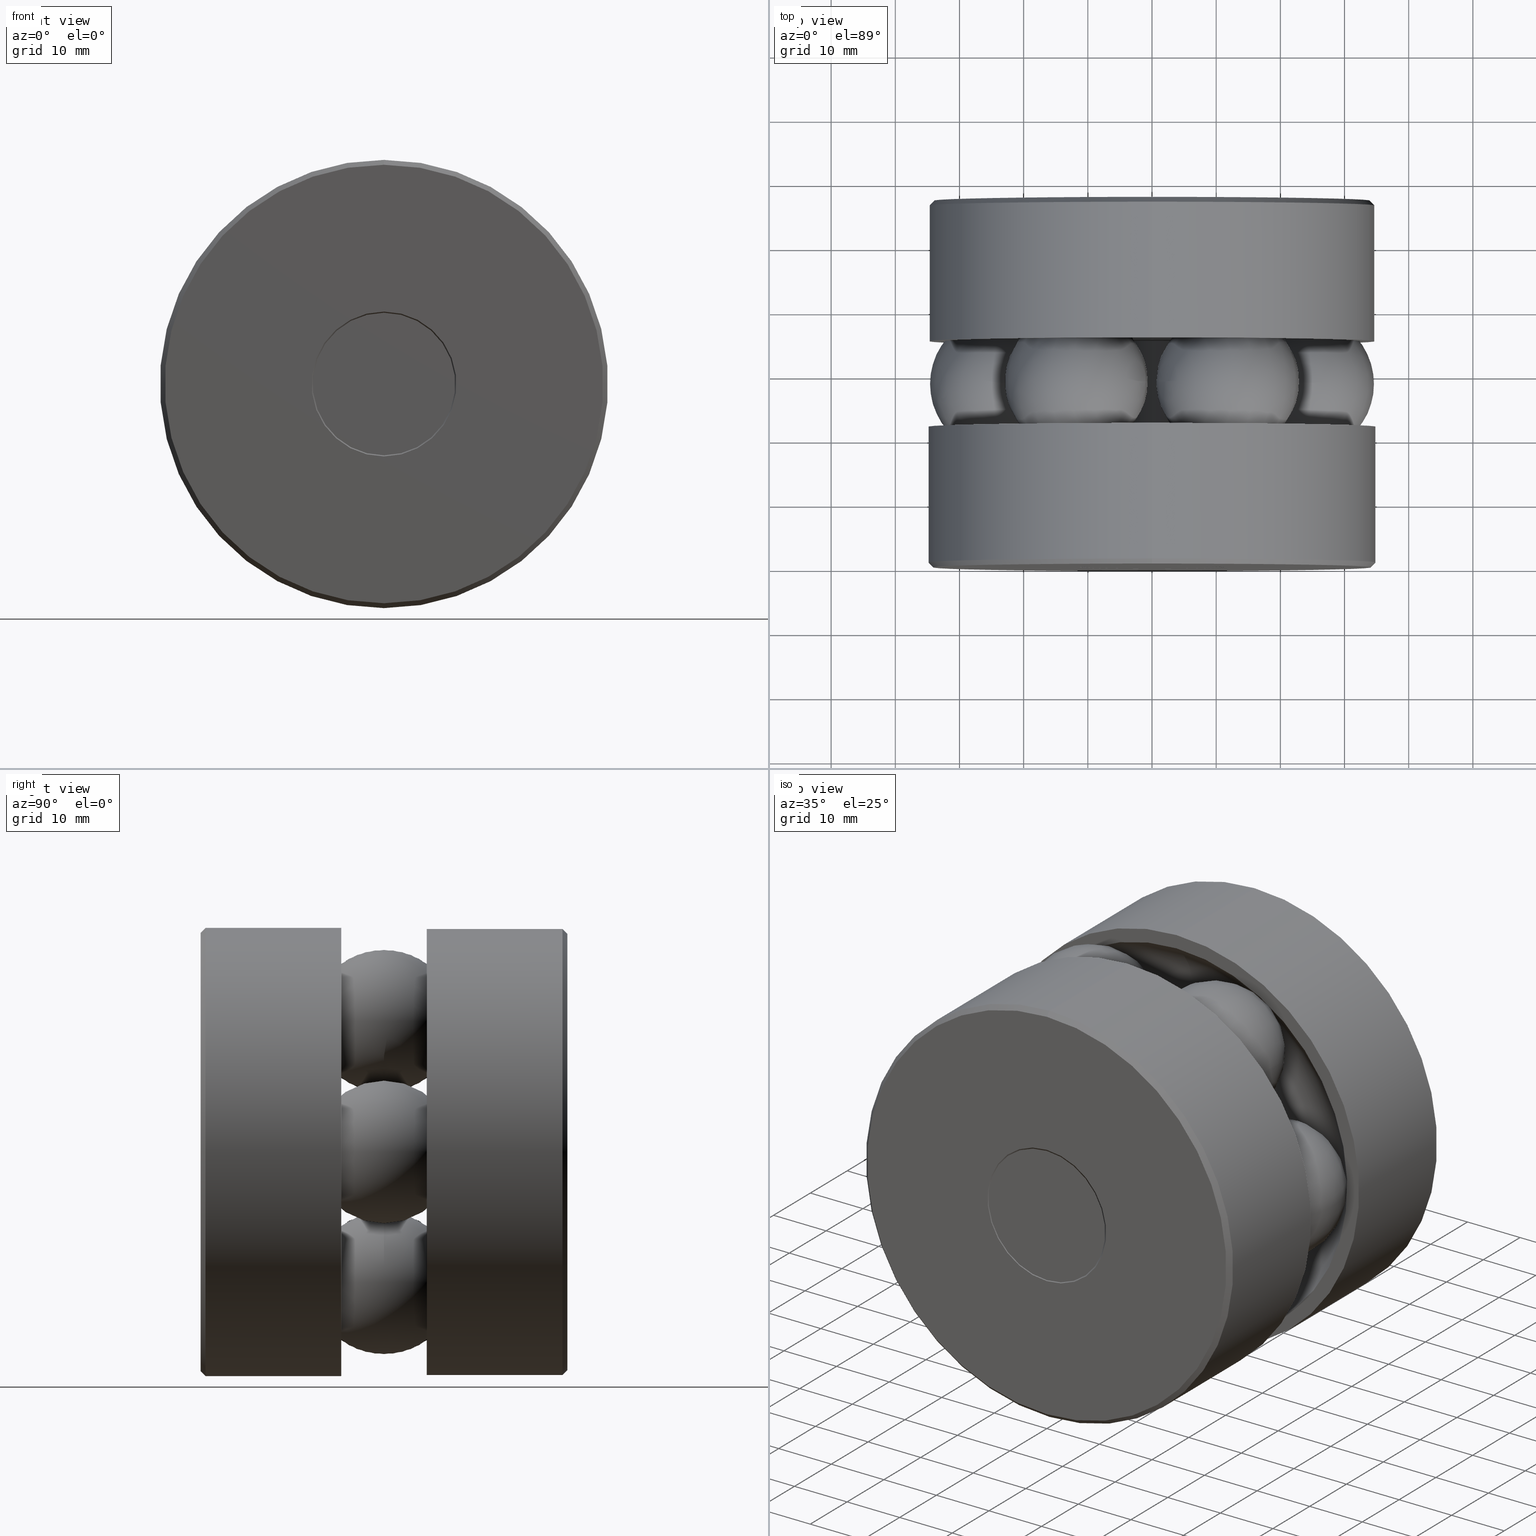
[diagram: canonical four-view strip — front | top / right | iso, engineering-drawing reading convention]
A machine part, canonical four-view strip (front | top / right | iso — engineering-drawing reading convention). The complete STEP part file that produces these views, byte-faithful:
ISO-10303-21;
HEADER;
FILE_DESCRIPTION (( 'STEP AP203' ),
    '1' );
FILE_NAME ('T-114RG_T-114RG-2012.step',
    '2016-02-04T15:34:13',
    ( '' ),
    ( '' ),
    'SwSTEP 2.0',
    'SolidWorks 2016',
    '' );
FILE_SCHEMA (( 'CONFIG_CONTROL_DESIGN' ));
ENDSEC;

DATA;
#1 = PLANE ( 'NONE',  #416 ) ;
#2 = AXIS2_PLACEMENT_3D ( 'NONE', #42, #363, #229 ) ;
#3 = ORIENTED_EDGE ( 'NONE', *, *, #47, .T. ) ;
#4 = FACE_OUTER_BOUND ( 'NONE', #311, .T. ) ;
#5 = FACE_OUTER_BOUND ( 'NONE', #299, .T. ) ;
#6 = DIRECTION ( 'NONE',  ( 1.000000000000000000, 0.0000000000000000000, 0.0000000000000000000 ) ) ;
#7 = DIRECTION ( 'NONE',  ( 0.0000000000000000000, -0.0000000000000000000, -1.000000000000000000 ) ) ;
#8 = APPROVAL_PERSON_ORGANIZATION ( #168, #405, #136 ) ;
#9 = MANIFOLD_SOLID_BREP ( 'BALLS[4]', #80 ) ;
#10 = CARTESIAN_POINT ( 'NONE',  ( -0.4443210678118624800, -6.928049813048010400E-017, 0.0000000000000000000 ) ) ;
#11 = CARTESIAN_POINT ( 'NONE',  ( 0.0000000000000000000, 0.0000000000000000000, 0.0000000000000000000 ) ) ;
#12 = CIRCLE ( 'NONE', #243, 1.375000000000000000 ) ;
#13 = CARTESIAN_POINT ( 'NONE',  ( 0.0000000000000000000, 1.968750000000000200, 0.1560000000000003300 ) ) ;
#14 = LENGTH_MEASURE_WITH_UNIT ( LENGTH_MEASURE( 0.02539999999999999900 ), #269 );
#15 = DIRECTION ( 'NONE',  ( 0.0000000000000000000, 0.0000000000000000000, 1.000000000000000000 ) ) ;
#16 = AXIS2_PLACEMENT_3D ( 'NONE', #41, #150, #56 ) ;
#17 = DIRECTION ( 'NONE',  ( -0.0000000000000000000, 1.000000000000000000, -0.0000000000000000000 ) ) ;
#18 = ORIENTED_EDGE ( 'NONE', *, *, #335, .T. ) ;
#19 = CIRCLE ( 'NONE', #474, 1.368000000000000100 ) ;
#20 = CARTESIAN_POINT ( 'NONE',  ( 0.0000000000000000000, 2.250000000000000000, 0.0000000000000000000 ) ) ;
#21 = CIRCLE ( 'NONE', #377, 0.4372499999999976400 ) ;
#22 = DIRECTION ( 'NONE',  ( -0.8660254037844398200, 0.0000000000000000000, -0.4999999999999979500 ) ) ;
#23 = CC_DESIGN_DATE_AND_TIME_ASSIGNMENT ( #167, #396, ( #514 ) ) ;
#24 = DIRECTION ( 'NONE',  ( 0.0000000000000000000, 0.0000000000000000000, 1.000000000000000000 ) ) ;
#25 = EDGE_LOOP ( 'NONE', ( #438 ) ) ;
#26 = VERTEX_POINT ( 'NONE', #79 ) ;
#27 = ADVANCED_FACE ( 'NONE', ( #224, #484 ), #472, .F. ) ;
#28 = ORIENTED_EDGE ( 'NONE', *, *, #335, .F. ) ;
#29 = DIRECTION ( 'NONE',  ( 0.0000000000000000000, -0.0000000000000000000, -1.000000000000000000 ) ) ;
#30 = AXIS2_PLACEMENT_3D ( 'NONE', #418, #126, #501 ) ;
#31 = DIRECTION ( 'NONE',  ( 0.0000000000000000000, 0.0000000000000000000, 1.000000000000000000 ) ) ;
#32 = ADVANCED_FACE ( 'NONE', ( ), #382, .T. ) ;
#33 = DIRECTION ( 'NONE',  ( 0.0000000000000000000, 0.0000000000000000000, 1.000000000000000000 ) ) ;
#34 = CARTESIAN_POINT ( 'NONE',  ( 0.0000000000000000000, -5.206580929709282900E-018, 0.4443210678118624800 ) ) ;
#35 = DATE_AND_TIME ( #153, #266 ) ;
#36 = EDGE_LOOP ( 'NONE', ( #190 ) ) ;
#37 = FACE_OUTER_BOUND ( 'NONE', #183, .T. ) ;
#38 = FACE_BOUND ( 'NONE', #176, .T. ) ;
#39 = AXIS2_PLACEMENT_3D ( 'NONE', #507, #76, #326 ) ;
#40 = DIRECTION ( 'NONE',  ( 0.8660254037844328200, 0.0000000000000000000, -0.5000000000000101000 ) ) ;
#41 = CARTESIAN_POINT ( 'NONE',  ( 0.0000000000000000000, 2.249999999999999600, 0.0000000000000000000 ) ) ;
#42 = CARTESIAN_POINT ( 'NONE',  ( 0.4642499999999926700, 1.125000000000000000, -0.8041045874138557100 ) ) ;
#43 = DIRECTION ( 'NONE',  ( 0.0000000000000000000, 0.0000000000000000000, 1.000000000000000000 ) ) ;
#44 = DIRECTION ( 'NONE',  ( -0.0000000000000000000, 1.000000000000000000, -0.0000000000000000000 ) ) ;
#45 = CARTESIAN_POINT ( 'NONE',  ( 0.0000000000000000000, 2.250000000000000000, 0.4372499999999976400 ) ) ;
#46 = DIRECTION ( 'NONE',  ( -0.0000000000000000000, 1.000000000000000000, -0.0000000000000000000 ) ) ;
#47 = EDGE_CURVE ( 'NONE', #291, #291, #246, .T. ) ;
#48 = DIRECTION ( 'NONE',  ( 0.0000000000000000000, -0.0000000000000000000, -1.000000000000000000 ) ) ;
#49 = CLOSED_SHELL ( 'NONE', ( #492, #293, #247, #27, #378, #337, #164, #334 ) ) ;
#50 = CARTESIAN_POINT ( 'NONE',  ( 0.0000000000000000000, 2.219999999999999800, 0.0000000000000000000 ) ) ;
#51 = VERTEX_POINT ( 'NONE', #45 ) ;
#52 = CARTESIAN_POINT ( 'NONE',  ( -0.4372499999999972500, 0.0000000000000000000, 0.0000000000000000000 ) ) ;
#53 = AXIS2_PLACEMENT_3D ( 'NONE', #159, #446, #198 ) ;
#54 = PERSON_AND_ORGANIZATION ( #208, #549 ) ;
#55 = ORIENTED_EDGE ( 'NONE', *, *, #491, .T. ) ;
#56 = DIRECTION ( 'NONE',  ( 0.0000000000000000000, 0.0000000000000000000, -1.000000000000000000 ) ) ;
#57 = EDGE_LOOP ( 'NONE', ( #219 ) ) ;
#58 = EDGE_LOOP ( 'NONE', ( #513 ) ) ;
#59 = CARTESIAN_POINT ( 'NONE',  ( 0.0000000000000000000, 1.387500000000000000, 1.278500000000000400 ) ) ;
#60 = CARTESIAN_POINT ( 'NONE',  ( 0.0000000000000000000, 1.125000000000000000, 0.0000000000000000000 ) ) ;
#61 = PERSON_AND_ORGANIZATION_ROLE ( 'design_supplier' ) ;
#62 = DIRECTION ( 'NONE',  ( 0.0000000000000000000, 0.0000000000000000000, -1.000000000000000000 ) ) ;
#63 = DIRECTION ( 'NONE',  ( 0.0000000000000000000, -0.0000000000000000000, -1.000000000000000000 ) ) ;
#64 = APPROVAL ( #143, 'UNSPECIFIED' ) ;
#65 = EDGE_LOOP ( 'NONE', ( #450 ) ) ;
#66 = FACE_OUTER_BOUND ( 'NONE', #154, .T. ) ;
#67 = DIRECTION ( 'NONE',  ( 0.0000000000000000000, -1.000000000000000000, 0.0000000000000000000 ) ) ;
#68 = CARTESIAN_POINT ( 'NONE',  ( 0.0000000000000000000, 2.250000000000000000, 0.0000000000000000000 ) ) ;
#69 = EDGE_CURVE ( 'NONE', #412, #412, #112, .T. ) ;
#70 = DIRECTION ( 'NONE',  ( -0.0000000000000000000, 1.000000000000000000, -0.0000000000000000000 ) ) ;
#71 = PERSON_AND_ORGANIZATION ( #208, #549 ) ;
#72 = CARTESIAN_POINT ( 'NONE',  ( 0.0000000000000000000, 1.387500000000000000, 0.0000000000000000000 ) ) ;
#73 = DIRECTION ( 'NONE',  ( 1.000000000000000000, 0.0000000000000000000, 0.0000000000000000000 ) ) ;
#74 = EDGE_LOOP ( 'NONE', ( #519 ) ) ;
#75 = ORIENTED_EDGE ( 'NONE', *, *, #491, .F. ) ;
#76 = DIRECTION ( 'NONE',  ( -0.0000000000000000000, 1.000000000000000000, -0.0000000000000000000 ) ) ;
#77 = CARTESIAN_POINT ( 'NONE',  ( 0.0000000000000000000, 0.2812500000000001700, 0.0000000000000000000 ) ) ;
#78 = AXIS2_PLACEMENT_3D ( 'NONE', #354, #512, #315 ) ;
#79 = CARTESIAN_POINT ( 'NONE',  ( 0.0000000000000000000, 0.2833210678118655600, 0.1610000000000000300 ) ) ;
#80 = CLOSED_SHELL ( 'NONE', ( #528 ) ) ;
#81 = DIRECTION ( 'NONE',  ( -0.0000000000000000000, 1.000000000000000000, -0.0000000000000000000 ) ) ;
#82 = CIRCLE ( 'NONE', #440, 0.4443210678118624800 ) ;
#83 = DIRECTION ( 'NONE',  ( 0.0000000000000000000, -1.000000000000000000, 0.0000000000000000000 ) ) ;
#84 = ADVANCED_FACE ( 'NONE', ( #38, #157 ), #248, .T. ) ;
#85 = ADVANCED_FACE ( 'NONE', ( #367, #131 ), #140, .T. ) ;
#86 = CALENDAR_DATE ( 2016, 4, 2 ) ;
#87 = VERTEX_POINT ( 'NONE', #222 ) ;
#88 = EDGE_LOOP ( 'NONE', ( #441 ) ) ;
#89 = EDGE_LOOP ( 'NONE', ( #346 ) ) ;
#90 = DIRECTION ( 'NONE',  ( 0.4999999999999979500, 0.0000000000000000000, -0.8660254037844398200 ) ) ;
#91 = AXIS2_PLACEMENT_3D ( 'NONE', #341, #534, #31 ) ;
#92 = PLANE ( 'NONE',  #119 ) ;
#93 = DIRECTION ( 'NONE',  ( -0.0000000000000000000, 1.000000000000000000, 0.0000000000000000000 ) ) ;
#94 = PERSON_AND_ORGANIZATION ( #208, #549 ) ;
#95 = SPHERICAL_SURFACE ( 'NONE', #110, 0.4375000000000000600 ) ;
#96 = CC_DESIGN_APPROVAL ( #64, ( #514 ) ) ;
#97 = PRODUCT_DEFINITION_SHAPE ( 'NONE', 'NONE',  #241 ) ;
#98 = EDGE_CURVE ( 'NONE', #430, #430, #255, .T. ) ;
#99 = CIRCLE ( 'NONE', #470, 0.1560000000000003300 ) ;
#100 = ORIENTED_EDGE ( 'NONE', *, *, #202, .F. ) ;
#101 = EDGE_LOOP ( 'NONE', ( #138 ) ) ;
#102 = CARTESIAN_POINT ( 'NONE',  ( 0.0000000000000000000, -5.206580929709282900E-018, 0.0000000000000000000 ) ) ;
#103 = PERSON_AND_ORGANIZATION_ROLE ( 'classification_officer' ) ;
#104 = VERTEX_POINT ( 'NONE', #547 ) ;
#105 = CIRCLE ( 'NONE', #365, 0.5785000000000002400 ) ;
#106 = AXIS2_PLACEMENT_3D ( 'NONE', #68, #454, #133 ) ;
#107 = FACE_OUTER_BOUND ( 'NONE', #381, .T. ) ;
#108 = APPROVAL_DATE_TIME ( #218, #274 ) ;
#109 = EDGE_LOOP ( 'NONE', ( #162 ) ) ;
#110 = AXIS2_PLACEMENT_3D ( 'NONE', #258, #350, #196 ) ;
#111 = AXIS2_PLACEMENT_3D ( 'NONE', #20, #17, #342 ) ;
#112 = CIRCLE ( 'NONE', #420, 0.1610000000000002000 ) ;
#113 = CONICAL_SURFACE ( 'NONE', #91, 0.1610000000000003400, 0.7853981633974433900 ) ;
#114 = CC_DESIGN_SECURITY_CLASSIFICATION ( #514, ( #385 ) ) ;
#115 = DIRECTION ( 'NONE',  ( 0.0000000000000000000, -1.000000000000000000, 0.0000000000000000000 ) ) ;
#116 = ADVANCED_FACE ( 'NONE', ( #540, #268 ), #328, .T. ) ;
#117 = CIRCLE ( 'NONE', #111, 0.4443210678118629200 ) ;
#118 = DIRECTION ( 'NONE',  ( 0.0000000000000000000, 0.0000000000000000000, 1.000000000000000000 ) ) ;
#119 = AXIS2_PLACEMENT_3D ( 'NONE', #344, #115, #48 ) ;
#120 = ADVANCED_FACE ( 'NONE', ( ), #155, .T. ) ;
#121 = ORIENTED_EDGE ( 'NONE', *, *, #98, .T. ) ;
#122 = PLANE ( 'NONE',  #221 ) ;
#123 = ORIENTED_EDGE ( 'NONE', *, *, #466, .F. ) ;
#124 = FACE_OUTER_BOUND ( 'NONE', #65, .T. ) ;
#125 = FACE_OUTER_BOUND ( 'NONE', #427, .T. ) ;
#126 = DIRECTION ( 'NONE',  ( -0.0000000000000000000, 1.000000000000000000, -0.0000000000000000000 ) ) ;
#127 = DIRECTION ( 'NONE',  ( -0.0000000000000000000, 1.000000000000000000, -0.0000000000000000000 ) ) ;
#128 = CARTESIAN_POINT ( 'NONE',  ( 0.0000000000000000000, 0.8624999999999999300, 1.278500000000000400 ) ) ;
#129 = EDGE_CURVE ( 'NONE', #310, #310, #429, .T. ) ;
#130 =( NAMED_UNIT ( * ) SI_UNIT ( $, .STERADIAN. ) SOLID_ANGLE_UNIT ( ) );
#131 = FACE_OUTER_BOUND ( 'NONE', #74, .T. ) ;
#132 = DIRECTION ( 'NONE',  ( -0.0000000000000000000, 1.000000000000000000, -0.0000000000000000000 ) ) ;
#133 = DIRECTION ( 'NONE',  ( 0.0000000000000000000, 0.0000000000000000000, 1.000000000000000000 ) ) ;
#134 = AXIS2_PLACEMENT_3D ( 'NONE', #456, #223, #228 ) ;
#135 = CARTESIAN_POINT ( 'NONE',  ( 0.0000000000000000000, 1.387500000000000000, 0.1610000000000002000 ) ) ;
#136 = APPROVAL_ROLE ( '' ) ;
#137 = DIRECTION ( 'NONE',  ( -0.0000000000000000000, 1.000000000000000000, -0.0000000000000000000 ) ) ;
#138 = ORIENTED_EDGE ( 'NONE', *, *, #129, .F. ) ;
#139 = FACE_BOUND ( 'NONE', #325, .T. ) ;
#140 = CYLINDRICAL_SURFACE ( 'NONE', #399, 0.1560000000000001900 ) ;
#141 = DIRECTION ( 'NONE',  ( 0.0000000000000000000, 0.0000000000000000000, 1.000000000000000000 ) ) ;
#142 = CARTESIAN_POINT ( 'NONE',  ( 0.0000000000000000000, 2.249999999999999600, 0.0000000000000000000 ) ) ;
#143 = APPROVAL_STATUS ( 'not_yet_approved' ) ;
#144 = CARTESIAN_POINT ( 'NONE',  ( -1.368000000000000100, 1.387500000000000000, 0.0000000000000000000 ) ) ;
#145 = DIRECTION ( 'NONE',  ( 0.0000000000000000000, 0.0000000000000000000, 1.000000000000000000 ) ) ;
#146 = PRODUCT_RELATED_PRODUCT_CATEGORY ( 'detail', '', ( #254 ) ) ;
#147 = CLOSED_SHELL ( 'NONE', ( #452 ) ) ;
#148 = VERTEX_POINT ( 'NONE', #242 ) ;
#149 = CLOSED_SHELL ( 'NONE', ( #245 ) ) ;
#150 = DIRECTION ( 'NONE',  ( 0.0000000000000000000, -1.000000000000000000, 0.0000000000000000000 ) ) ;
#151 = AXIS2_PLACEMENT_3D ( 'NONE', #60, #46, #24 ) ;
#152 = DIRECTION ( 'NONE',  ( -0.0000000000000000000, 1.000000000000000000, -0.0000000000000000000 ) ) ;
#153 = CALENDAR_DATE ( 2016, 4, 2 ) ;
#154 = EDGE_LOOP ( 'NONE', ( #465 ) ) ;
#155 = SPHERICAL_SURFACE ( 'NONE', #353, 0.4375000000000000600 ) ;
#156 = CARTESIAN_POINT ( 'NONE',  ( 0.0000000000000000000, 0.03000000000000012700, 0.0000000000000000000 ) ) ;
#157 = FACE_OUTER_BOUND ( 'NONE', #518, .T. ) ;
#158 = DIRECTION ( 'NONE',  ( 0.0000000000000000000, 0.0000000000000000000, -1.000000000000000000 ) ) ;
#159 = CARTESIAN_POINT ( 'NONE',  ( 0.0000000000000000000, -1.333544153312509300E-016, 0.0000000000000000000 ) ) ;
#160 = EDGE_CURVE ( 'NONE', #51, #51, #21, .T. ) ;
#161 = ADVANCED_FACE ( 'NONE', ( #458, #449 ), #92, .T. ) ;
#162 = ORIENTED_EDGE ( 'NONE', *, *, #368, .T. ) ;
#163 = SHAPE_DEFINITION_REPRESENTATION ( #97, #376 ) ;
#164 = ADVANCED_FACE ( 'NONE', ( #360, #37 ), #357, .F. ) ;
#165 = CARTESIAN_POINT ( 'NONE',  ( 0.0000000000000000000, 0.8624999999999999300, 0.0000000000000000000 ) ) ;
#166 = AXIS2_PLACEMENT_3D ( 'NONE', #213, #216, #280 ) ;
#167 = DATE_AND_TIME ( #282, #391 ) ;
#168 = PERSON_AND_ORGANIZATION ( #208, #549 ) ;
#169 = DIRECTION ( 'NONE',  ( 0.0000000000000000000, -1.000000000000000000, 0.0000000000000000000 ) ) ;
#170 = AXIS2_PLACEMENT_3D ( 'NONE', #488, #22, #90 ) ;
#171 = ORIENTED_EDGE ( 'NONE', *, *, #309, .T. ) ;
#172 = ORIENTED_EDGE ( 'NONE', *, *, #98, .F. ) ;
#173 = MANIFOLD_SOLID_BREP ( 'BALLS[3]', #497 ) ;
#174 = CARTESIAN_POINT ( 'NONE',  ( 0.0000000000000000000, 1.387500000000000000, 0.0000000000000000000 ) ) ;
#175 = CARTESIAN_POINT ( 'NONE',  ( 0.0000000000000000000, 2.250000000000000000, 0.4443210678118629200 ) ) ;
#176 = EDGE_LOOP ( 'NONE', ( #3 ) ) ;
#177 = CARTESIAN_POINT ( 'NONE',  ( 0.0000000000000000000, 0.0000000000000000000, 0.0000000000000000000 ) ) ;
#178 = CYLINDRICAL_SURFACE ( 'NONE', #498, 1.375000000000000000 ) ;
#179 = DIRECTION ( 'NONE',  ( -0.8660254037844362700, 0.0000000000000000000, 0.5000000000000041100 ) ) ;
#180 = EDGE_CURVE ( 'NONE', #478, #478, #12, .T. ) ;
#181 = PERSON_AND_ORGANIZATION ( #208, #549 ) ;
#182 = ORIENTED_EDGE ( 'NONE', *, *, #180, .F. ) ;
#183 = EDGE_LOOP ( 'NONE', ( #300 ) ) ;
#184 = AXIS2_PLACEMENT_3D ( 'NONE', #11, #459, #73 ) ;
#185 = CIRCLE ( 'NONE', #192, 0.4372499999999972500 ) ;
#186 = APPLICATION_CONTEXT ( 'configuration controlled 3d designs of mechanical parts and assemblies' ) ;
#187 = DIRECTION ( 'NONE',  ( -0.0000000000000000000, 1.000000000000000000, -0.0000000000000000000 ) ) ;
#188 = LOCAL_TIME ( 10, 34, 13.00000000000000000, #530 ) ;
#189 = VERTEX_POINT ( 'NONE', #175 ) ;
#190 = ORIENTED_EDGE ( 'NONE', *, *, #278, .T. ) ;
#191 = CLOSED_SHELL ( 'NONE', ( #32 ) ) ;
#192 = AXIS2_PLACEMENT_3D ( 'NONE', #177, #132, #43 ) ;
#193 = AXIS2_PLACEMENT_3D ( 'NONE', #165, #451, #201 ) ;
#194 = DIRECTION ( 'NONE',  ( 0.0000000000000000000, 0.0000000000000000000, 1.000000000000000000 ) ) ;
#195 = AXIS2_PLACEMENT_3D ( 'NONE', #276, #308, #273 ) ;
#196 = DIRECTION ( 'NONE',  ( -1.000000000000000000, 0.0000000000000000000, 6.982962677686266700E-015 ) ) ;
#197 = FACE_BOUND ( 'NONE', #511, .T. ) ;
#198 = DIRECTION ( 'NONE',  ( 0.0000000000000000000, 0.0000000000000000000, 1.000000000000000000 ) ) ;
#199 = CARTESIAN_POINT ( 'NONE',  ( -0.4642500000000094900, 1.125000000000000000, -0.8041045874138460500 ) ) ;
#200 = ADVANCED_FACE ( 'NONE', ( #240, #351 ), #348, .T. ) ;
#201 = DIRECTION ( 'NONE',  ( 0.0000000000000000000, 0.0000000000000000000, 1.000000000000000000 ) ) ;
#202 = EDGE_CURVE ( 'NONE', #330, #330, #443, .T. ) ;
#203 = FACE_OUTER_BOUND ( 'NONE', #252, .T. ) ;
#204 = EDGE_LOOP ( 'NONE', ( #182 ) ) ;
#205 = ADVANCED_FACE ( 'NONE', ( #5, #471 ), #113, .F. ) ;
#206 = ORIENTED_EDGE ( 'NONE', *, *, #234, .T. ) ;
#207 = DIRECTION ( 'NONE',  ( -0.0000000000000000000, 1.000000000000000000, -0.0000000000000000000 ) ) ;
#208 = PERSON ( 'UNSPECIFIED', 'UNSPECIFIED', 'UNSPECIFIED', ('UNSPECIFIED'), ('UNSPECIFIED'), ('UNSPECIFIED') ) ;
#209 = CC_DESIGN_PERSON_AND_ORGANIZATION_ASSIGNMENT ( #94, #281, ( #254 ) ) ;
#210 = DIRECTION ( 'NONE',  ( -0.0000000000000000000, 1.000000000000000000, -0.0000000000000000000 ) ) ;
#211 = CARTESIAN_POINT ( 'NONE',  ( 0.0000000000000000000, 1.968750000000000200, 0.0000000000000000000 ) ) ;
#212 = VERTEX_POINT ( 'NONE', #244 ) ;
#213 = CARTESIAN_POINT ( 'NONE',  ( 0.0000000000000000000, 0.0000000000000000000, 0.0000000000000000000 ) ) ;
#214 = CONICAL_SURFACE ( 'NONE', #251, 1.375000000000000000, 0.7853981633974431700 ) ;
#215 = DIRECTION ( 'NONE',  ( 0.0000000000000000000, 0.0000000000000000000, 1.000000000000000000 ) ) ;
#216 = DIRECTION ( 'NONE',  ( -0.0000000000000000000, 1.000000000000000000, -0.0000000000000000000 ) ) ;
#217 = FACE_OUTER_BOUND ( 'NONE', #394, .T. ) ;
#218 = DATE_AND_TIME ( #392, #515 ) ;
#219 = ORIENTED_EDGE ( 'NONE', *, *, #69, .F. ) ;
#220 = CARTESIAN_POINT ( 'NONE',  ( 0.0000000000000000000, 0.0000000000000000000, 0.0000000000000000000 ) ) ;
#221 = AXIS2_PLACEMENT_3D ( 'NONE', #10, #169, #29 ) ;
#222 = CARTESIAN_POINT ( 'NONE',  ( 0.0000000000000000000, 0.8624999999999999300, 0.5785000000000002400 ) ) ;
#223 = DIRECTION ( 'NONE',  ( 0.0000000000000000000, -1.000000000000000000, 0.0000000000000000000 ) ) ;
#224 = FACE_BOUND ( 'NONE', #109, .T. ) ;
#225 = DIRECTION ( 'NONE',  ( 0.0000000000000000000, 0.0000000000000000000, 1.000000000000000000 ) ) ;
#226 = FACE_OUTER_BOUND ( 'NONE', #88, .T. ) ;
#227 = SPHERICAL_SURFACE ( 'NONE', #170, 0.4375000000000000600 ) ;
#228 = DIRECTION ( 'NONE',  ( 0.0000000000000000000, 0.0000000000000000000, -1.000000000000000000 ) ) ;
#229 = DIRECTION ( 'NONE',  ( -0.4999999999999919500, 0.0000000000000000000, 0.8660254037844432600 ) ) ;
#230 = DIRECTION ( 'NONE',  ( 0.0000000000000000000, 0.0000000000000000000, 1.000000000000000000 ) ) ;
#231 = FACE_OUTER_BOUND ( 'NONE', #204, .T. ) ;
#232 = DIRECTION ( 'NONE',  ( -0.0000000000000000000, 1.000000000000000000, -0.0000000000000000000 ) ) ;
#233 = EDGE_LOOP ( 'NONE', ( #455 ) ) ;
#234 = EDGE_CURVE ( 'NONE', #189, #189, #117, .T. ) ;
#235 = APPROVAL_STATUS ( 'not_yet_approved' ) ;
#236 = DIRECTION ( 'NONE',  ( -0.0000000000000000000, 1.000000000000000000, 0.0000000000000000000 ) ) ;
#237 = PLANE ( 'NONE',  #284 ) ;
#238 = ORIENTED_EDGE ( 'NONE', *, *, #318, .F. ) ;
#239 = FACE_OUTER_BOUND ( 'NONE', #487, .T. ) ;
#240 = FACE_OUTER_BOUND ( 'NONE', #388, .T. ) ;
#241 = PRODUCT_DEFINITION ( 'UNKNOWN', '', #385, #332 ) ;
#242 = CARTESIAN_POINT ( 'NONE',  ( 0.0000000000000000000, 1.387500000000000000, 1.368000000000000100 ) ) ;
#243 = AXIS2_PLACEMENT_3D ( 'NONE', #156, #152, #296 ) ;
#244 = CARTESIAN_POINT ( 'NONE',  ( 0.0000000000000000000, 1.966678932188134600, 0.1610000000000003400 ) ) ;
#245 = ADVANCED_FACE ( 'NONE', ( ), #227, .T. ) ;
#246 = CIRCLE ( 'NONE', #475, 1.278500000000000400 ) ;
#247 = ADVANCED_FACE ( 'NONE', ( #366, #125 ), #122, .T. ) ;
#248 = PLANE ( 'NONE',  #480 ) ;
#249 = AXIS2_PLACEMENT_3D ( 'NONE', #220, #232, #225 ) ;
#250 = DIMENSIONAL_EXPONENTS ( 1.000000000000000000, 0.0000000000000000000, 0.0000000000000000000, 0.0000000000000000000, 0.0000000000000000000, 0.0000000000000000000, 0.0000000000000000000 ) ;
#251 = AXIS2_PLACEMENT_3D ( 'NONE', #336, #379, #118 ) ;
#252 = EDGE_LOOP ( 'NONE', ( #404 ) ) ;
#253 = CIRCLE ( 'NONE', #193, 1.278500000000000400 ) ;
#254 = PRODUCT ( 'T-114RG_T-114RG-2012', 'T-114RG_T-114RG-2012', '', ( #327 ) ) ;
#255 = CIRCLE ( 'NONE', #30, 0.5785000000000001300 ) ;
#256 = DIRECTION ( 'NONE',  ( 0.0000000000000000000, 0.0000000000000000000, 1.000000000000000000 ) ) ;
#257 = CARTESIAN_POINT ( 'NONE',  ( 0.0000000000000000000, 2.250000000000000400, 0.0000000000000000000 ) ) ;
#258 = CARTESIAN_POINT ( 'NONE',  ( 0.9285000000000002100, 1.125000000000000000, -6.483680846231700100E-015 ) ) ;
#259 = DIRECTION ( 'NONE',  ( -0.0000000000000000000, 1.000000000000000000, 0.0000000000000000000 ) ) ;
#260 = CARTESIAN_POINT ( 'NONE',  ( -0.5785000000000000100, 0.8625000000000001600, 0.0000000000000000000 ) ) ;
#261 = EDGE_LOOP ( 'NONE', ( #477 ) ) ;
#262 = VERTEX_POINT ( 'NONE', #413 ) ;
#263 = DIRECTION ( 'NONE',  ( -0.0000000000000000000, 1.000000000000000000, -0.0000000000000000000 ) ) ;
#264 = DIRECTION ( 'NONE',  ( 0.0000000000000000000, 0.0000000000000000000, 1.000000000000000000 ) ) ;
#265 = DIRECTION ( 'NONE',  ( 0.0000000000000000000, 0.0000000000000000000, 1.000000000000000000 ) ) ;
#266 = LOCAL_TIME ( 10, 34, 13.00000000000000000, #380 ) ;
#267 = EDGE_LOOP ( 'NONE', ( #55 ) ) ;
#268 = FACE_OUTER_BOUND ( 'NONE', #58, .T. ) ;
#269 =( LENGTH_UNIT ( ) NAMED_UNIT ( * ) SI_UNIT ( $, .METRE. ) );
#270 = ORIENTED_EDGE ( 'NONE', *, *, #538, .F. ) ;
#271 = MANIFOLD_SOLID_BREP ( 'BALLS[5]', #277 ) ;
#272 = CARTESIAN_POINT ( 'NONE',  ( 0.0000000000000000000, -5.206580929709282900E-018, 0.0000000000000000000 ) ) ;
#273 = DIRECTION ( 'NONE',  ( 0.0000000000000000000, 0.0000000000000000000, 1.000000000000000000 ) ) ;
#274 = APPROVAL ( #235, 'UNSPECIFIED' ) ;
#275 = PLANE ( 'NONE',  #195 ) ;
#276 = CARTESIAN_POINT ( 'NONE',  ( -0.4443210678118629200, 2.249999999999999600, 0.0000000000000000000 ) ) ;
#277 = CLOSED_SHELL ( 'NONE', ( #120 ) ) ;
#278 = EDGE_CURVE ( 'NONE', #373, #373, #253, .T. ) ;
#279 = EDGE_LOOP ( 'NONE', ( #238 ) ) ;
#280 = DIRECTION ( 'NONE',  ( 0.0000000000000000000, 0.0000000000000000000, 1.000000000000000000 ) ) ;
#281 = PERSON_AND_ORGANIZATION_ROLE ( 'design_owner' ) ;
#282 = CALENDAR_DATE ( 2016, 4, 2 ) ;
#283 = COORDINATED_UNIVERSAL_TIME_OFFSET ( 5, 0, .BEHIND. ) ;
#284 = AXIS2_PLACEMENT_3D ( 'NONE', #257, #236, #141 ) ;
#285 = ORIENTED_EDGE ( 'NONE', *, *, #527, .T. ) ;
#286 = EDGE_LOOP ( 'NONE', ( #270 ) ) ;
#287 = AXIS2_PLACEMENT_3D ( 'NONE', #460, #210, #256 ) ;
#288 = CARTESIAN_POINT ( 'NONE',  ( 0.0000000000000000000, 0.8624999999999999300, 0.0000000000000000000 ) ) ;
#289 = DIRECTION ( 'NONE',  ( 0.0000000000000000000, 0.0000000000000000000, 1.000000000000000000 ) ) ;
#290 = EDGE_LOOP ( 'NONE', ( #18 ) ) ;
#291 = VERTEX_POINT ( 'NONE', #59 ) ;
#292 = ORIENTED_EDGE ( 'NONE', *, *, #466, .T. ) ;
#293 = ADVANCED_FACE ( 'NONE', ( #139, #231 ), #214, .T. ) ;
#294 = CARTESIAN_POINT ( 'NONE',  ( 0.0000000000000000000, 1.125000000000000000, 0.0000000000000000000 ) ) ;
#295 = ADVANCED_FACE ( 'NONE', ( #548, #432 ), #542, .F. ) ;
#296 = DIRECTION ( 'NONE',  ( 0.0000000000000000000, 0.0000000000000000000, 1.000000000000000000 ) ) ;
#297 = MANIFOLD_SOLID_BREP ( 'Revolve2[1]', #482 ) ;
#298 = PERSON_AND_ORGANIZATION ( #208, #549 ) ;
#299 = EDGE_LOOP ( 'NONE', ( #206 ) ) ;
#300 = ORIENTED_EDGE ( 'NONE', *, *, #321, .F. ) ;
#301 = DIRECTION ( 'NONE',  ( 0.0000000000000000000, 0.0000000000000000000, 1.000000000000000000 ) ) ;
#302 = CC_DESIGN_APPROVAL ( #274, ( #241 ) ) ;
#303 = DIRECTION ( 'NONE',  ( -0.0000000000000000000, 1.000000000000000000, -0.0000000000000000000 ) ) ;
#304 = CARTESIAN_POINT ( 'NONE',  ( 0.0000000000000000000, -1.333544153312509300E-016, 1.345000000000000000 ) ) ;
#305 = CARTESIAN_POINT ( 'NONE',  ( -1.375000000000000000, 0.8624999999999999300, 0.0000000000000000000 ) ) ;
#306 = DATE_AND_TIME ( #426, #535 ) ;
#307 = SPHERICAL_SURFACE ( 'NONE', #313, 0.4375000000000000600 ) ;
#308 = DIRECTION ( 'NONE',  ( -0.0000000000000000000, 1.000000000000000000, 0.0000000000000000000 ) ) ;
#309 = EDGE_CURVE ( 'NONE', #262, #262, #331, .T. ) ;
#310 = VERTEX_POINT ( 'NONE', #463 ) ;
#311 = EDGE_LOOP ( 'NONE', ( #123 ) ) ;
#312 = EDGE_LOOP ( 'NONE', ( #171 ) ) ;
#313 = AXIS2_PLACEMENT_3D ( 'NONE', #473, #62, #6 ) ;
#314 = AXIS2_PLACEMENT_3D ( 'NONE', #294, #375, #301 ) ;
#315 = DIRECTION ( 'NONE',  ( 0.0000000000000000000, 0.0000000000000000000, 1.000000000000000000 ) ) ;
#316 = MANIFOLD_SOLID_BREP ( 'Revolve2[3]', #49 ) ;
#317 = PERSON_AND_ORGANIZATION_ROLE ( 'creator' ) ;
#318 = EDGE_CURVE ( 'NONE', #212, #212, #457, .T. ) ;
#319 = FACE_BOUND ( 'NONE', #286, .T. ) ;
#320 = CYLINDRICAL_SURFACE ( 'NONE', #249, 1.368000000000000100 ) ;
#321 = EDGE_CURVE ( 'NONE', #87, #87, #105, .T. ) ;
#322 = APPLICATION_PROTOCOL_DEFINITION ( 'international standard', 'config_control_design', 1994, #186 ) ;
#323 = EDGE_LOOP ( 'NONE', ( #340 ) ) ;
#324 = DIRECTION ( 'NONE',  ( -0.0000000000000000000, 1.000000000000000000, -0.0000000000000000000 ) ) ;
#325 = EDGE_LOOP ( 'NONE', ( #414 ) ) ;
#326 = DIRECTION ( 'NONE',  ( 0.0000000000000000000, 0.0000000000000000000, 1.000000000000000000 ) ) ;
#327 = MECHANICAL_CONTEXT ( 'NONE', #186, 'mechanical' ) ;
#328 = CONICAL_SURFACE ( 'NONE', #106, 0.4372499999999976400, 0.7853981633974437300 ) ;
#329 = CC_DESIGN_PERSON_AND_ORGANIZATION_ASSIGNMENT ( #406, #483, ( #241 ) ) ;
#330 = VERTEX_POINT ( 'NONE', #304 ) ;
#331 = CIRCLE ( 'NONE', #287, 1.375000000000000000 ) ;
#332 = DESIGN_CONTEXT ( 'detailed design', #362, 'design' ) ;
#333 = CARTESIAN_POINT ( 'NONE',  ( 0.0000000000000000000, 2.250000000000000000, 0.0000000000000000000 ) ) ;
#334 = ADVANCED_FACE ( 'NONE', ( #435, #356 ), #499, .T. ) ;
#335 = EDGE_CURVE ( 'NONE', #148, #148, #19, .T. ) ;
#336 = CARTESIAN_POINT ( 'NONE',  ( 0.0000000000000000000, 0.03000000000000012700, 0.0000000000000000000 ) ) ;
#337 = ADVANCED_FACE ( 'NONE', ( #338, #319 ), #387, .T. ) ;
#338 = FACE_OUTER_BOUND ( 'NONE', #352, .T. ) ;
#339 = COORDINATED_UNIVERSAL_TIME_OFFSET ( 5, 0, .BEHIND. ) ;
#340 = ORIENTED_EDGE ( 'NONE', *, *, #453, .F. ) ;
#341 = CARTESIAN_POINT ( 'NONE',  ( 0.0000000000000000000, 1.966678932188134600, 0.0000000000000000000 ) ) ;
#342 = DIRECTION ( 'NONE',  ( 0.0000000000000000000, 0.0000000000000000000, 1.000000000000000000 ) ) ;
#343 = AXIS2_PLACEMENT_3D ( 'NONE', #50, #434, #419 ) ;
#344 = CARTESIAN_POINT ( 'NONE',  ( -0.5785000000000001300, 1.387500000000000000, 0.0000000000000000000 ) ) ;
#345 = AXIS2_PLACEMENT_3D ( 'NONE', #386, #127, #422 ) ;
#346 = ORIENTED_EDGE ( 'NONE', *, *, #160, .T. ) ;
#347 = CIRCLE ( 'NONE', #395, 0.1560000000000000300 ) ;
#348 = CONICAL_SURFACE ( 'NONE', #16, 1.338000000000000300, 0.7853981633974391800 ) ;
#349 = DIRECTION ( 'NONE',  ( 0.0000000000000000000, 0.0000000000000000000, 1.000000000000000000 ) ) ;
#350 = DIRECTION ( 'NONE',  ( 6.982962677686266700E-015, -0.0000000000000000000, 1.000000000000000000 ) ) ;
#351 = FACE_BOUND ( 'NONE', #101, .T. ) ;
#352 = EDGE_LOOP ( 'NONE', ( #372 ) ) ;
#353 = AXIS2_PLACEMENT_3D ( 'NONE', #199, #40, #417 ) ;
#354 = CARTESIAN_POINT ( 'NONE',  ( 0.0000000000000000000, 0.0000000000000000000, 0.0000000000000000000 ) ) ;
#355 = ORIENTED_EDGE ( 'NONE', *, *, #510, .T. ) ;
#356 = FACE_BOUND ( 'NONE', #25, .T. ) ;
#357 = TOROIDAL_SURFACE ( 'NONE', #151, 0.9285000000000002100, 0.4375000000000000600 ) ;
#358 = SECURITY_CLASSIFICATION_LEVEL ( 'unclassified' ) ;
#359 = CC_DESIGN_DATE_AND_TIME_ASSIGNMENT ( #306, #539, ( #241 ) ) ;
#360 = FACE_OUTER_BOUND ( 'NONE', #36, .T. ) ;
#361 = VERTEX_POINT ( 'NONE', #13 ) ;
#362 = APPLICATION_CONTEXT ( 'configuration controlled 3d designs of mechanical parts and assemblies' ) ;
#363 = DIRECTION ( 'NONE',  ( 0.8660254037844432600, -0.0000000000000000000, 0.4999999999999919500 ) ) ;
#364 = EDGE_LOOP ( 'NONE', ( #285 ) ) ;
#365 = AXIS2_PLACEMENT_3D ( 'NONE', #288, #44, #349 ) ;
#366 = FACE_BOUND ( 'NONE', #364, .T. ) ;
#367 = FACE_OUTER_BOUND ( 'NONE', #267, .T. ) ;
#368 = EDGE_CURVE ( 'NONE', #26, #26, #421, .T. ) ;
#369 = DIRECTION ( 'NONE',  ( 0.0000000000000000000, 0.0000000000000000000, 1.000000000000000000 ) ) ;
#370 = ADVANCED_FACE ( 'NONE', ( #239, #197 ), #275, .T. ) ;
#371 = MANIFOLD_SOLID_BREP ( 'Revolve3', #147 ) ;
#372 = ORIENTED_EDGE ( 'NONE', *, *, #321, .T. ) ;
#373 = VERTEX_POINT ( 'NONE', #128 ) ;
#374 = ADVANCED_FACE ( 'NONE', ( ), #95, .T. ) ;
#375 = DIRECTION ( 'NONE',  ( -0.0000000000000000000, 1.000000000000000000, -0.0000000000000000000 ) ) ;
#376 = ADVANCED_BREP_SHAPE_REPRESENTATION ( 'T-114RG_T-114RG-2012', ( #297, #479, #316, #371, #384, #464, #173, #9, #271, #184 ), #523 ) ;
#377 = AXIS2_PLACEMENT_3D ( 'NONE', #333, #81, #369 ) ;
#378 = ADVANCED_FACE ( 'NONE', ( #124, #217 ), #407, .F. ) ;
#379 = DIRECTION ( 'NONE',  ( -0.0000000000000000000, 1.000000000000000000, -0.0000000000000000000 ) ) ;
#380 = COORDINATED_UNIVERSAL_TIME_OFFSET ( 5, 0, .BEHIND. ) ;
#381 = EDGE_LOOP ( 'NONE', ( #415 ) ) ;
#382 = SPHERICAL_SURFACE ( 'NONE', #445, 0.4375000000000000600 ) ;
#383 = ORIENTED_EDGE ( 'NONE', *, *, #234, .F. ) ;
#384 = MANIFOLD_SOLID_BREP ( 'BALLS[1]', #149 ) ;
#385 = PRODUCT_DEFINITION_FORMATION_WITH_SPECIFIED_SOURCE ( 'ANY', '', #254, .NOT_KNOWN. ) ;
#386 = CARTESIAN_POINT ( 'NONE',  ( 0.0000000000000000000, 1.966678932188134600, 0.0000000000000000000 ) ) ;
#387 = PLANE ( 'NONE',  #424 ) ;
#388 = EDGE_LOOP ( 'NONE', ( #292 ) ) ;
#389 = CIRCLE ( 'NONE', #39, 0.1610000000000001200 ) ;
#390 = DIRECTION ( 'NONE',  ( 0.0000000000000000000, -1.000000000000000000, 0.0000000000000000000 ) ) ;
#391 = LOCAL_TIME ( 10, 34, 13.00000000000000000, #494 ) ;
#392 = CALENDAR_DATE ( 2016, 4, 2 ) ;
#393 = ORIENTED_EDGE ( 'NONE', *, *, #527, .F. ) ;
#394 = EDGE_LOOP ( 'NONE', ( #403 ) ) ;
#395 = AXIS2_PLACEMENT_3D ( 'NONE', #77, #187, #230 ) ;
#396 = DATE_TIME_ROLE ( 'classification_date' ) ;
#397 = EDGE_LOOP ( 'NONE', ( #121 ) ) ;
#398 = FACE_OUTER_BOUND ( 'NONE', #57, .T. ) ;
#399 = AXIS2_PLACEMENT_3D ( 'NONE', #537, #70, #145 ) ;
#400 = APPLICATION_PROTOCOL_DEFINITION ( 'international standard', 'config_control_design', 1994, #362 ) ;
#401 = APPROVAL_DATE_TIME ( #508, #405 ) ;
#402 = VERTEX_POINT ( 'NONE', #476 ) ;
#403 = ORIENTED_EDGE ( 'NONE', *, *, #368, .F. ) ;
#404 = ORIENTED_EDGE ( 'NONE', *, *, #180, .T. ) ;
#405 = APPROVAL ( #409, 'UNSPECIFIED' ) ;
#406 = PERSON_AND_ORGANIZATION ( #208, #549 ) ;
#407 = CYLINDRICAL_SURFACE ( 'NONE', #166, 0.1610000000000000600 ) ;
#408 = DIRECTION ( 'NONE',  ( 0.0000000000000000000, 0.0000000000000000000, 1.000000000000000000 ) ) ;
#409 = APPROVAL_STATUS ( 'not_yet_approved' ) ;
#410 = ADVANCED_FACE ( 'NONE', ( #107, #516 ), #442, .T. ) ;
#411 = ADVANCED_FACE ( 'NONE', ( #525, #4 ), #320, .T. ) ;
#412 = VERTEX_POINT ( 'NONE', #135 ) ;
#413 = CARTESIAN_POINT ( 'NONE',  ( 0.0000000000000000000, 0.8625000000000000400, 1.375000000000000000 ) ) ;
#414 = ORIENTED_EDGE ( 'NONE', *, *, #202, .T. ) ;
#415 = ORIENTED_EDGE ( 'NONE', *, *, #453, .T. ) ;
#416 = AXIS2_PLACEMENT_3D ( 'NONE', #52, #390, #7 ) ;
#417 = DIRECTION ( 'NONE',  ( 0.5000000000000101000, 0.0000000000000000000, 0.8660254037844328200 ) ) ;
#418 = CARTESIAN_POINT ( 'NONE',  ( 0.0000000000000000000, 1.387500000000000000, 0.0000000000000000000 ) ) ;
#419 = DIRECTION ( 'NONE',  ( 0.0000000000000000000, 0.0000000000000000000, 1.000000000000000000 ) ) ;
#420 = AXIS2_PLACEMENT_3D ( 'NONE', #493, #207, #33 ) ;
#421 = CIRCLE ( 'NONE', #436, 0.1610000000000000300 ) ;
#422 = DIRECTION ( 'NONE',  ( 0.0000000000000000000, 0.0000000000000000000, 1.000000000000000000 ) ) ;
#423 = CARTESIAN_POINT ( 'NONE',  ( 0.0000000000000000000, 0.03000000000000012700, 1.375000000000000000 ) ) ;
#424 = AXIS2_PLACEMENT_3D ( 'NONE', #260, #259, #264 ) ;
#425 = CIRCLE ( 'NONE', #343, 1.368000000000000100 ) ;
#426 = CALENDAR_DATE ( 2016, 4, 2 ) ;
#427 = EDGE_LOOP ( 'NONE', ( #100 ) ) ;
#428 = AXIS2_PLACEMENT_3D ( 'NONE', #142, #137, #408 ) ;
#429 = CIRCLE ( 'NONE', #428, 1.338000000000000300 ) ;
#430 = VERTEX_POINT ( 'NONE', #544 ) ;
#431 = APPROVAL_ROLE ( '' ) ;
#432 = FACE_OUTER_BOUND ( 'NONE', #233, .T. ) ;
#433 = CC_DESIGN_APPROVAL ( #405, ( #385 ) ) ;
#434 = DIRECTION ( 'NONE',  ( -0.0000000000000000000, 1.000000000000000000, -0.0000000000000000000 ) ) ;
#435 = FACE_OUTER_BOUND ( 'NONE', #312, .T. ) ;
#436 = AXIS2_PLACEMENT_3D ( 'NONE', #543, #303, #265 ) ;
#437 = APPROVAL_PERSON_ORGANIZATION ( #495, #274, #521 ) ;
#438 = ORIENTED_EDGE ( 'NONE', *, *, #278, .F. ) ;
#439 =( NAMED_UNIT ( * ) PLANE_ANGLE_UNIT ( ) SI_UNIT ( $, .RADIAN. ) );
#440 = AXIS2_PLACEMENT_3D ( 'NONE', #272, #263, #15 ) ;
#441 = ORIENTED_EDGE ( 'NONE', *, *, #309, .F. ) ;
#442 = CONICAL_SURFACE ( 'NONE', #134, 0.1560000000000000300, 0.7853981633974430600 ) ;
#443 = CIRCLE ( 'NONE', #53, 1.345000000000000000 ) ;
#444 = AXIS2_PLACEMENT_3D ( 'NONE', #305, #93, #504 ) ;
#445 = AXIS2_PLACEMENT_3D ( 'NONE', #529, #179, #526 ) ;
#446 = DIRECTION ( 'NONE',  ( -0.0000000000000000000, 1.000000000000000000, -0.0000000000000000000 ) ) ;
#447 = UNCERTAINTY_MEASURE_WITH_UNIT (LENGTH_MEASURE( 1.000000000000000100E-005 ), #520, 'distance_accuracy_value', 'NONE');
#448 = ADVANCED_FACE ( 'NONE', ( #533 ), #237, .T. ) ;
#449 = FACE_OUTER_BOUND ( 'NONE', #550, .T. ) ;
#450 = ORIENTED_EDGE ( 'NONE', *, *, #538, .T. ) ;
#451 = DIRECTION ( 'NONE',  ( -0.0000000000000000000, 1.000000000000000000, -0.0000000000000000000 ) ) ;
#452 = ADVANCED_FACE ( 'NONE', ( ), #307, .T. ) ;
#453 = EDGE_CURVE ( 'NONE', #104, #104, #185, .T. ) ;
#454 = DIRECTION ( 'NONE',  ( -0.0000000000000000000, 1.000000000000000000, -0.0000000000000000000 ) ) ;
#455 = ORIENTED_EDGE ( 'NONE', *, *, #47, .F. ) ;
#456 = CARTESIAN_POINT ( 'NONE',  ( 0.0000000000000000000, 0.2812500000000001700, 0.0000000000000000000 ) ) ;
#457 = CIRCLE ( 'NONE', #345, 0.1610000000000003400 ) ;
#458 = FACE_BOUND ( 'NONE', #261, .T. ) ;
#459 = DIRECTION ( 'NONE',  ( 0.0000000000000000000, 0.0000000000000000000, 1.000000000000000000 ) ) ;
#460 = CARTESIAN_POINT ( 'NONE',  ( 0.0000000000000000000, 0.8625000000000000400, 0.0000000000000000000 ) ) ;
#461 = CC_DESIGN_PERSON_AND_ORGANIZATION_ASSIGNMENT ( #298, #317, ( #385 ) ) ;
#462 = DIRECTION ( 'NONE',  ( -0.0000000000000000000, 1.000000000000000000, -0.0000000000000000000 ) ) ;
#463 = CARTESIAN_POINT ( 'NONE',  ( 0.0000000000000000000, 2.249999999999999600, 1.338000000000000300 ) ) ;
#464 = MANIFOLD_SOLID_BREP ( 'BALLS[2]', #191 ) ;
#465 = ORIENTED_EDGE ( 'NONE', *, *, #318, .T. ) ;
#466 = EDGE_CURVE ( 'NONE', #509, #509, #425, .T. ) ;
#467 = VERTEX_POINT ( 'NONE', #500 ) ;
#468 = APPROVAL_DATE_TIME ( #35, #64 ) ;
#469 = CLOSED_SHELL ( 'NONE', ( #205, #531, #161, #295, #84, #411, #200, #370 ) ) ;
#470 = AXIS2_PLACEMENT_3D ( 'NONE', #211, #546, #532 ) ;
#471 = FACE_BOUND ( 'NONE', #279, .T. ) ;
#472 = CONICAL_SURFACE ( 'NONE', #502, 0.4443210678118624800, 0.7853981633974428400 ) ;
#473 = CARTESIAN_POINT ( 'NONE',  ( -0.9285000000000002100, 1.125000000000000000, 0.0000000000000000000 ) ) ;
#474 = AXIS2_PLACEMENT_3D ( 'NONE', #174, #462, #215 ) ;
#475 = AXIS2_PLACEMENT_3D ( 'NONE', #72, #490, #289 ) ;
#476 = CARTESIAN_POINT ( 'NONE',  ( 0.0000000000000000000, 0.8625000000000003800, 0.1610000000000001200 ) ) ;
#477 = ORIENTED_EDGE ( 'NONE', *, *, #69, .T. ) ;
#478 = VERTEX_POINT ( 'NONE', #423 ) ;
#479 = MANIFOLD_SOLID_BREP ( 'Revolve2[2]', #469 ) ;
#480 = AXIS2_PLACEMENT_3D ( 'NONE', #144, #67, #63 ) ;
#481 = APPROVAL_PERSON_ORGANIZATION ( #54, #64, #431 ) ;
#482 = CLOSED_SHELL ( 'NONE', ( #489, #448, #116, #85, #410 ) ) ;
#483 = PERSON_AND_ORGANIZATION_ROLE ( 'creator' ) ;
#484 = FACE_OUTER_BOUND ( 'NONE', #536, .T. ) ;
#485 = EDGE_LOOP ( 'NONE', ( #355 ) ) ;
#486 = CC_DESIGN_PERSON_AND_ORGANIZATION_ASSIGNMENT ( #181, #61, ( #385 ) ) ;
#487 = EDGE_LOOP ( 'NONE', ( #496 ) ) ;
#488 = CARTESIAN_POINT ( 'NONE',  ( -0.4642499999999982800, 1.125000000000000000, 0.8041045874138526000 ) ) ;
#489 = ADVANCED_FACE ( 'NONE', ( #506 ), #1, .T. ) ;
#490 = DIRECTION ( 'NONE',  ( -0.0000000000000000000, 1.000000000000000000, -0.0000000000000000000 ) ) ;
#491 = EDGE_CURVE ( 'NONE', #467, #467, #347, .T. ) ;
#492 = ADVANCED_FACE ( 'NONE', ( #203, #226 ), #178, .T. ) ;
#493 = CARTESIAN_POINT ( 'NONE',  ( 0.0000000000000000000, 1.387500000000000000, 0.0000000000000000000 ) ) ;
#494 = COORDINATED_UNIVERSAL_TIME_OFFSET ( 5, 0, .BEHIND. ) ;
#495 = PERSON_AND_ORGANIZATION ( #208, #549 ) ;
#496 = ORIENTED_EDGE ( 'NONE', *, *, #129, .T. ) ;
#497 = CLOSED_SHELL ( 'NONE', ( #374 ) ) ;
#498 = AXIS2_PLACEMENT_3D ( 'NONE', #522, #324, #194 ) ;
#499 = PLANE ( 'NONE',  #444 ) ;
#500 = CARTESIAN_POINT ( 'NONE',  ( 0.0000000000000000000, 0.2812500000000001700, 0.1560000000000000300 ) ) ;
#501 = DIRECTION ( 'NONE',  ( 0.0000000000000000000, 0.0000000000000000000, 1.000000000000000000 ) ) ;
#502 = AXIS2_PLACEMENT_3D ( 'NONE', #102, #83, #158 ) ;
#503 = CARTESIAN_POINT ( 'NONE',  ( 0.0000000000000000000, 2.219999999999999800, 1.368000000000000100 ) ) ;
#504 = DIRECTION ( 'NONE',  ( 0.0000000000000000000, 0.0000000000000000000, 1.000000000000000000 ) ) ;
#505 = EDGE_LOOP ( 'NONE', ( #75 ) ) ;
#506 = FACE_OUTER_BOUND ( 'NONE', #323, .T. ) ;
#507 = CARTESIAN_POINT ( 'NONE',  ( 0.0000000000000000000, 0.8625000000000003800, 0.0000000000000000000 ) ) ;
#508 = DATE_AND_TIME ( #86, #188 ) ;
#509 = VERTEX_POINT ( 'NONE', #503 ) ;
#510 = EDGE_CURVE ( 'NONE', #361, #361, #99, .T. ) ;
#511 = EDGE_LOOP ( 'NONE', ( #383 ) ) ;
#512 = DIRECTION ( 'NONE',  ( -0.0000000000000000000, 1.000000000000000000, -0.0000000000000000000 ) ) ;
#513 = ORIENTED_EDGE ( 'NONE', *, *, #160, .F. ) ;
#514 = SECURITY_CLASSIFICATION ( '', '', #358 ) ;
#515 = LOCAL_TIME ( 10, 34, 13.00000000000000000, #339 ) ;
#516 = FACE_BOUND ( 'NONE', #505, .T. ) ;
#517 = SPHERICAL_SURFACE ( 'NONE', #2, 0.4375000000000000600 ) ;
#518 = EDGE_LOOP ( 'NONE', ( #28 ) ) ;
#519 = ORIENTED_EDGE ( 'NONE', *, *, #510, .F. ) ;
#520 =( CONVERSION_BASED_UNIT ( 'INCH', #14 ) LENGTH_UNIT ( ) NAMED_UNIT ( #250 ) );
#521 = APPROVAL_ROLE ( '' ) ;
#522 = CARTESIAN_POINT ( 'NONE',  ( 0.0000000000000000000, 0.0000000000000000000, 0.0000000000000000000 ) ) ;
#523 =( GEOMETRIC_REPRESENTATION_CONTEXT ( 3 ) GLOBAL_UNCERTAINTY_ASSIGNED_CONTEXT ( ( #447 ) ) GLOBAL_UNIT_ASSIGNED_CONTEXT ( ( #520, #439, #130 ) ) REPRESENTATION_CONTEXT ( 'NONE', 'WORKASPACE' ) );
#524 = VERTEX_POINT ( 'NONE', #34 ) ;
#525 = FACE_OUTER_BOUND ( 'NONE', #290, .T. ) ;
#526 = DIRECTION ( 'NONE',  ( -0.5000000000000041100, 0.0000000000000000000, -0.8660254037844363800 ) ) ;
#527 = EDGE_CURVE ( 'NONE', #524, #524, #82, .T. ) ;
#528 = ADVANCED_FACE ( 'NONE', ( ), #517, .T. ) ;
#529 = CARTESIAN_POINT ( 'NONE',  ( 0.4642500000000039400, 1.125000000000000000, 0.8041045874138493800 ) ) ;
#530 = COORDINATED_UNIVERSAL_TIME_OFFSET ( 5, 0, .BEHIND. ) ;
#531 = ADVANCED_FACE ( 'NONE', ( #66, #398 ), #541, .F. ) ;
#532 = DIRECTION ( 'NONE',  ( 0.0000000000000000000, 0.0000000000000000000, 1.000000000000000000 ) ) ;
#533 = FACE_OUTER_BOUND ( 'NONE', #89, .T. ) ;
#534 = DIRECTION ( 'NONE',  ( -0.0000000000000000000, 1.000000000000000000, -0.0000000000000000000 ) ) ;
#535 = LOCAL_TIME ( 10, 34, 13.00000000000000000, #283 ) ;
#536 = EDGE_LOOP ( 'NONE', ( #393 ) ) ;
#537 = CARTESIAN_POINT ( 'NONE',  ( 0.0000000000000000000, 0.0000000000000000000, 0.0000000000000000000 ) ) ;
#538 = EDGE_CURVE ( 'NONE', #402, #402, #389, .T. ) ;
#539 = DATE_TIME_ROLE ( 'creation_date' ) ;
#540 = FACE_BOUND ( 'NONE', #485, .T. ) ;
#541 = CYLINDRICAL_SURFACE ( 'NONE', #78, 0.1610000000000002800 ) ;
#542 = TOROIDAL_SURFACE ( 'NONE', #314, 0.9285000000000002100, 0.4375000000000000000 ) ;
#543 = CARTESIAN_POINT ( 'NONE',  ( 0.0000000000000000000, 0.2833210678118655600, 0.0000000000000000000 ) ) ;
#544 = CARTESIAN_POINT ( 'NONE',  ( 0.0000000000000000000, 1.387500000000000000, 0.5785000000000001300 ) ) ;
#545 = CC_DESIGN_PERSON_AND_ORGANIZATION_ASSIGNMENT ( #71, #103, ( #514 ) ) ;
#546 = DIRECTION ( 'NONE',  ( -0.0000000000000000000, 1.000000000000000000, -0.0000000000000000000 ) ) ;
#547 = CARTESIAN_POINT ( 'NONE',  ( 0.0000000000000000000, 0.0000000000000000000, 0.4372499999999972500 ) ) ;
#548 = FACE_OUTER_BOUND ( 'NONE', #397, .T. ) ;
#549 = ORGANIZATION ( 'UNSPECIFIED', 'UNSPECIFIED', '' ) ;
#550 = EDGE_LOOP ( 'NONE', ( #172 ) ) ;
ENDSEC;
END-ISO-10303-21;
